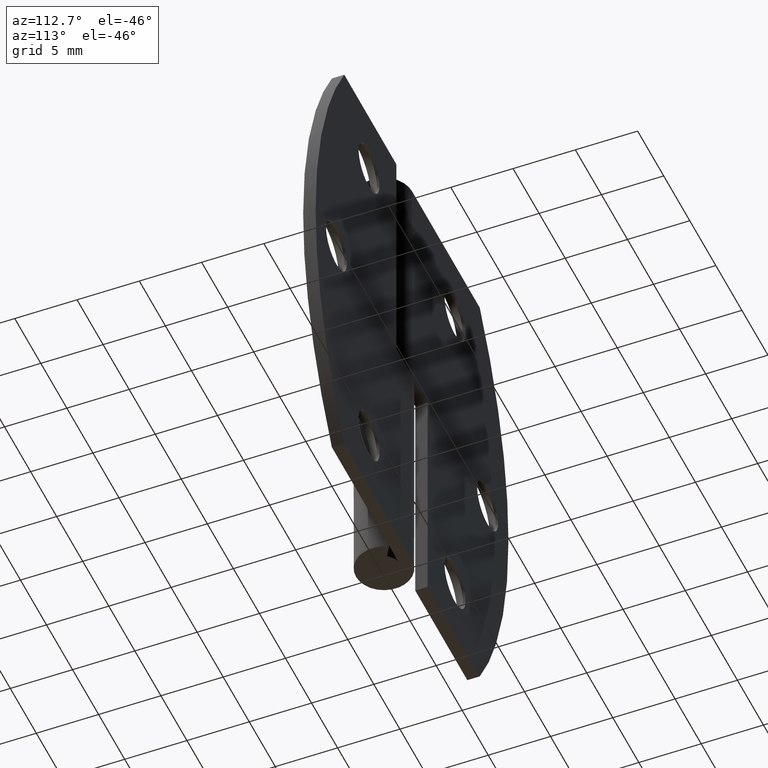
[diagram: clean part render]
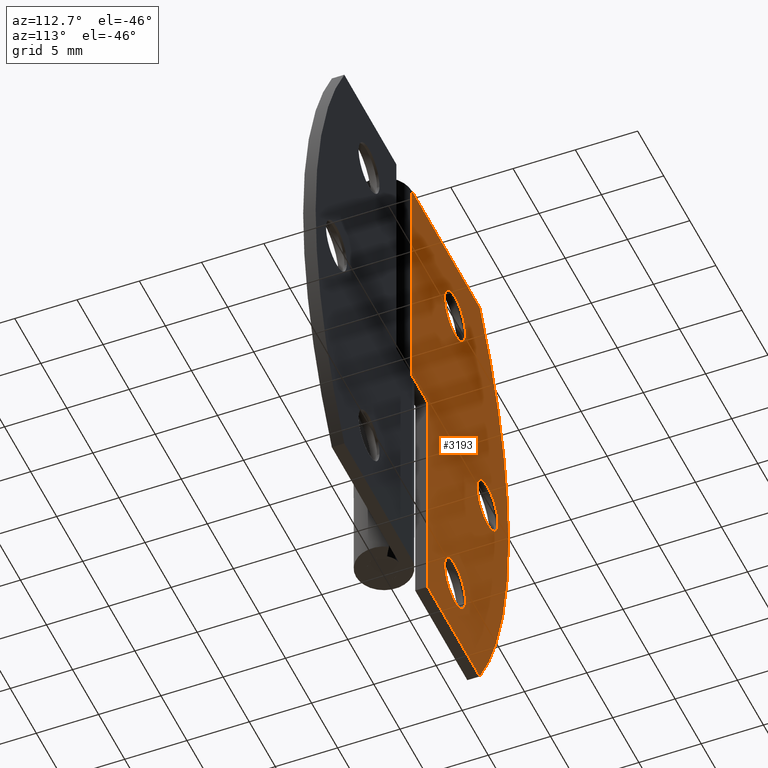
[diagram: same view with one face highlighted and labeled with its STEP entity id]
A machine part, auxiliary view. The second image highlights one B-rep face of the part: STEP entity #3193.
In plain terms, the highlighted face is a freeform B-spline surface patch.
Its self-contained STEP definition (entity closure, byte-faithful):
#2108=CARTESIAN_POINT('',(-6.263980947286562,2.250000000000000,5.636070469430411));
#2109=VERTEX_POINT('',#2108);
#2115=CARTESIAN_POINT('',(-8.250000000000000,2.250000000000000,3.400002000000000));
#2116=VERTEX_POINT('',#2115);
#2117=CARTESIAN_POINT('',(-6.263980947286562,2.250000000000000,5.636070469430411));
#2118=CARTESIAN_POINT('',(-6.250000000000000,2.250000000000000,5.518450239421951));
#2119=CARTESIAN_POINT('',(-6.250000000000000,2.250000000000000,5.400002000000000));
#2120=CARTESIAN_POINT('',(-6.250000000000000,2.250000000000000,3.400002000000000));
#2121=CARTESIAN_POINT('',(-8.250000000000000,2.250000000000000,3.400002000000000));
#2129=(BOUNDED_CURVE()B_SPLINE_CURVE(2,(#2117,#2118,#2119,#2120,#2121),.UNSPECIFIED.,.F.,.U.)B_SPLINE_CURVE_WITH_KNOTS((3,2,3),(0.229562473495749,0.250000000000000,0.500000000000000),.UNSPECIFIED.)CURVE()GEOMETRIC_REPRESENTATION_ITEM()RATIONAL_B_SPLINE_CURVE((0.956026754148891,0.976055948310339,1.0,0.707106781186548,1.0))REPRESENTATION_ITEM(''));
#2130=EDGE_CURVE('',#2109,#2116,#2129,.T.);
#2132=CARTESIAN_POINT('',(-10.246269596835971,2.250000000000000,5.277904920803391));
#2133=VERTEX_POINT('',#2132);
#2134=CARTESIAN_POINT('',(-8.250000000000000,2.250000000000000,3.400002000000000));
#2135=CARTESIAN_POINT('',(-10.131412133571747,2.250000000000000,3.400002000000000));
#2136=CARTESIAN_POINT('',(-10.246269596835972,2.250000000000000,5.277904920803391));
#2144=(BOUNDED_CURVE()B_SPLINE_CURVE(2,(#2134,#2135,#2136),.UNSPECIFIED.,.F.,.U.)B_SPLINE_CURVE_WITH_KNOTS((3,3),(0.500000000000000,0.739332962220031),.UNSPECIFIED.)CURVE()GEOMETRIC_REPRESENTATION_ITEM()RATIONAL_B_SPLINE_CURVE((1.0,0.719603993308866,0.976072041626187))REPRESENTATION_ITEM(''));
#2145=EDGE_CURVE('',#2116,#2133,#2144,.T.);
#2179=CARTESIAN_POINT('',(-8.250000000000000,2.250000000000000,7.400002000000000));
#2180=VERTEX_POINT('',#2179);
#2181=CARTESIAN_POINT('',(-10.246269596835972,2.250000000000000,5.277904920803391));
#2182=CARTESIAN_POINT('',(-10.250000000000000,2.250000000000001,5.338896473275572));
#2183=CARTESIAN_POINT('',(-10.250000000000000,2.250000000000000,5.400002000000000));
#2184=CARTESIAN_POINT('',(-10.250000000000000,2.250000000000000,7.400001999999999));
#2185=CARTESIAN_POINT('',(-8.250000000000000,2.250000000000000,7.400002000000000));
#2193=(BOUNDED_CURVE()B_SPLINE_CURVE(2,(#2181,#2182,#2183,#2184,#2185),.UNSPECIFIED.,.F.,.U.)B_SPLINE_CURVE_WITH_KNOTS((3,2,3),(0.739332962220032,0.750000000000000,1.0),.UNSPECIFIED.)CURVE()GEOMETRIC_REPRESENTATION_ITEM()RATIONAL_B_SPLINE_CURVE((0.976072041626188,0.987502787877682,1.0,0.707106781186548,1.0))REPRESENTATION_ITEM(''));
#2194=EDGE_CURVE('',#2133,#2180,#2193,.T.);
#2196=CARTESIAN_POINT('',(-8.250000000000000,2.250000000000000,7.400002000000000));
#2197=CARTESIAN_POINT('',(-6.473650948307843,2.250000000000001,7.400001999999998));
#2198=CARTESIAN_POINT('',(-6.263980947286562,2.249999999999999,5.636070469430412));
#2206=(BOUNDED_CURVE()B_SPLINE_CURVE(2,(#2196,#2197,#2198),.UNSPECIFIED.,.F.,.U.)B_SPLINE_CURVE_WITH_KNOTS((3,3),(0.0,0.229562473495750),.UNSPECIFIED.)CURVE()GEOMETRIC_REPRESENTATION_ITEM()RATIONAL_B_SPLINE_CURVE((1.0,0.731050832876208,0.956026754148891))REPRESENTATION_ITEM(''));
#2207=EDGE_CURVE('',#2180,#2109,#2206,.T.);
#2452=CARTESIAN_POINT('',(-12.513980947286560,2.250000000000000,19.886070469430418));
#2453=VERTEX_POINT('',#2452);
#2459=CARTESIAN_POINT('',(-14.500000000000000,2.250000000000000,17.650002000000001));
#2460=VERTEX_POINT('',#2459);
#2461=CARTESIAN_POINT('',(-12.513980947286560,2.249999999999999,19.886070469430415));
#2462=CARTESIAN_POINT('',(-12.499999999999998,2.250000000000000,19.768450239421952));
#2463=CARTESIAN_POINT('',(-12.500000000000000,2.250000000000000,19.650002000000001));
#2464=CARTESIAN_POINT('',(-12.500000000000000,2.250000000000000,17.650002000000004));
#2465=CARTESIAN_POINT('',(-14.500000000000000,2.250000000000000,17.650002000000001));
#2473=(BOUNDED_CURVE()B_SPLINE_CURVE(2,(#2461,#2462,#2463,#2464,#2465),.UNSPECIFIED.,.F.,.U.)B_SPLINE_CURVE_WITH_KNOTS((3,2,3),(0.229562473495749,0.250000000000000,0.500000000000000),.UNSPECIFIED.)CURVE()GEOMETRIC_REPRESENTATION_ITEM()RATIONAL_B_SPLINE_CURVE((0.956026754148891,0.976055948310339,1.0,0.707106781186548,1.0))REPRESENTATION_ITEM(''));
#2474=EDGE_CURVE('',#2453,#2460,#2473,.T.);
#2476=CARTESIAN_POINT('',(-16.496269596835969,2.250000000000000,19.527904920803390));
#2477=VERTEX_POINT('',#2476);
#2478=CARTESIAN_POINT('',(-14.500000000000000,2.250000000000000,17.650002000000001));
#2479=CARTESIAN_POINT('',(-16.381412133571750,2.250000000000000,17.650002000000001));
#2480=CARTESIAN_POINT('',(-16.496269596835976,2.250000000000000,19.527904920803390));
#2488=(BOUNDED_CURVE()B_SPLINE_CURVE(2,(#2478,#2479,#2480),.UNSPECIFIED.,.F.,.U.)B_SPLINE_CURVE_WITH_KNOTS((3,3),(0.500000000000000,0.739332962220031),.UNSPECIFIED.)CURVE()GEOMETRIC_REPRESENTATION_ITEM()RATIONAL_B_SPLINE_CURVE((1.0,0.719603993308866,0.976072041626187))REPRESENTATION_ITEM(''));
#2489=EDGE_CURVE('',#2460,#2477,#2488,.T.);
#2523=CARTESIAN_POINT('',(-14.500000000000000,2.250000000000000,21.650002000000001));
#2524=VERTEX_POINT('',#2523);
#2525=CARTESIAN_POINT('',(-16.496269596835976,2.250000000000000,19.527904920803397));
#2526=CARTESIAN_POINT('',(-16.499999999999996,2.250000000000001,19.588896473275572));
#2527=CARTESIAN_POINT('',(-16.500000000000000,2.250000000000000,19.650002000000001));
#2528=CARTESIAN_POINT('',(-16.499999999999993,2.250000000000000,21.650002000000004));
#2529=CARTESIAN_POINT('',(-14.500000000000000,2.250000000000000,21.650002000000001));
#2537=(BOUNDED_CURVE()B_SPLINE_CURVE(2,(#2525,#2526,#2527,#2528,#2529),.UNSPECIFIED.,.F.,.U.)B_SPLINE_CURVE_WITH_KNOTS((3,2,3),(0.739332962220032,0.750000000000000,1.0),.UNSPECIFIED.)CURVE()GEOMETRIC_REPRESENTATION_ITEM()RATIONAL_B_SPLINE_CURVE((0.976072041626188,0.987502787877682,1.0,0.707106781186548,1.0))REPRESENTATION_ITEM(''));
#2538=EDGE_CURVE('',#2477,#2524,#2537,.T.);
#2540=CARTESIAN_POINT('',(-14.500000000000000,2.250000000000000,21.650002000000001));
#2541=CARTESIAN_POINT('',(-12.723650948307846,2.250000000000000,21.650002000000001));
#2542=CARTESIAN_POINT('',(-12.513980947286559,2.250000000000000,19.886070469430411));
#2550=(BOUNDED_CURVE()B_SPLINE_CURVE(2,(#2540,#2541,#2542),.UNSPECIFIED.,.F.,.U.)B_SPLINE_CURVE_WITH_KNOTS((3,3),(0.0,0.229562473495750),.UNSPECIFIED.)CURVE()GEOMETRIC_REPRESENTATION_ITEM()RATIONAL_B_SPLINE_CURVE((1.0,0.731050832876208,0.956026754148892))REPRESENTATION_ITEM(''));
#2551=EDGE_CURVE('',#2524,#2453,#2550,.T.);
#2796=CARTESIAN_POINT('',(-6.263980947286561,2.250000000000000,34.136077469430496));
#2797=VERTEX_POINT('',#2796);
#2803=CARTESIAN_POINT('',(-8.250000000000000,2.250000000000000,31.900009000000100));
#2804=VERTEX_POINT('',#2803);
#2805=CARTESIAN_POINT('',(-6.263980947286561,2.250000000000000,34.136077469430496));
#2806=CARTESIAN_POINT('',(-6.250000000000001,2.250000000000000,34.018457239422048));
#2807=CARTESIAN_POINT('',(-6.250000000000000,2.250000000000000,33.900009000000097));
#2808=CARTESIAN_POINT('',(-6.250000000000000,2.250000000000000,31.900009000000100));
#2809=CARTESIAN_POINT('',(-8.250000000000000,2.250000000000000,31.900009000000100));
#2817=(BOUNDED_CURVE()B_SPLINE_CURVE(2,(#2805,#2806,#2807,#2808,#2809),.UNSPECIFIED.,.F.,.U.)B_SPLINE_CURVE_WITH_KNOTS((3,2,3),(0.229562473495750,0.250000000000000,0.500000000000000),.UNSPECIFIED.)CURVE()GEOMETRIC_REPRESENTATION_ITEM()RATIONAL_B_SPLINE_CURVE((0.956026754148893,0.976055948310340,1.0,0.707106781186548,1.0))REPRESENTATION_ITEM(''));
#2818=EDGE_CURVE('',#2797,#2804,#2817,.T.);
#2820=CARTESIAN_POINT('',(-10.246269596835971,2.250000000000000,33.777911920803490));
#2821=VERTEX_POINT('',#2820);
#2822=CARTESIAN_POINT('',(-8.250000000000000,2.250000000000000,31.900009000000100));
#2823=CARTESIAN_POINT('',(-10.131412133571747,2.250000000000000,31.900009000000097));
#2824=CARTESIAN_POINT('',(-10.246269596835972,2.250000000000000,33.777911920803490));
#2832=(BOUNDED_CURVE()B_SPLINE_CURVE(2,(#2822,#2823,#2824),.UNSPECIFIED.,.F.,.U.)B_SPLINE_CURVE_WITH_KNOTS((3,3),(0.500000000000000,0.739332962220031),.UNSPECIFIED.)CURVE()GEOMETRIC_REPRESENTATION_ITEM()RATIONAL_B_SPLINE_CURVE((1.0,0.719603993308866,0.976072041626187))REPRESENTATION_ITEM(''));
#2833=EDGE_CURVE('',#2804,#2821,#2832,.T.);
#2867=CARTESIAN_POINT('',(-8.250000000000000,2.250000000000000,35.900009000000097));
#2868=VERTEX_POINT('',#2867);
#2869=CARTESIAN_POINT('',(-10.246269596835972,2.250000000000000,33.777911920803497));
#2870=CARTESIAN_POINT('',(-10.250000000000000,2.250000000000001,33.838903473275671));
#2871=CARTESIAN_POINT('',(-10.250000000000000,2.250000000000000,33.900009000000097));
#2872=CARTESIAN_POINT('',(-10.250000000000000,2.250000000000000,35.900009000000104));
#2873=CARTESIAN_POINT('',(-8.250000000000000,2.250000000000000,35.900009000000097));
#2881=(BOUNDED_CURVE()B_SPLINE_CURVE(2,(#2869,#2870,#2871,#2872,#2873),.UNSPECIFIED.,.F.,.U.)B_SPLINE_CURVE_WITH_KNOTS((3,2,3),(0.739332962220032,0.750000000000000,1.0),.UNSPECIFIED.)CURVE()GEOMETRIC_REPRESENTATION_ITEM()RATIONAL_B_SPLINE_CURVE((0.976072041626188,0.987502787877682,1.0,0.707106781186548,1.0))REPRESENTATION_ITEM(''));
#2882=EDGE_CURVE('',#2821,#2868,#2881,.T.);
#2884=CARTESIAN_POINT('',(-8.250000000000000,2.250000000000000,35.900009000000097));
#2885=CARTESIAN_POINT('',(-6.473650948307835,2.249999999999999,35.900009000000111));
#2886=CARTESIAN_POINT('',(-6.263980947286561,2.250000000000000,34.136077469430511));
#2894=(BOUNDED_CURVE()B_SPLINE_CURVE(2,(#2884,#2885,#2886),.UNSPECIFIED.,.F.,.U.)B_SPLINE_CURVE_WITH_KNOTS((3,3),(0.0,0.229562473495750),.UNSPECIFIED.)CURVE()GEOMETRIC_REPRESENTATION_ITEM()RATIONAL_B_SPLINE_CURVE((1.0,0.731050832876207,0.956026754148893))REPRESENTATION_ITEM(''));
#2895=EDGE_CURVE('',#2868,#2797,#2894,.T.);
#2915=CARTESIAN_POINT('',(-3.0,2.249999999999975,0.0));
#2916=VERTEX_POINT('',#2915);
#2922=CARTESIAN_POINT('',(-3.0,2.249999999999975,19.650002000000001));
#2923=VERTEX_POINT('',#2922);
#2924=CARTESIAN_POINT('',(-3.0,2.249999999999975,19.650002000000001));
#2925=CARTESIAN_POINT('',(-3.0,2.249999999999975,0.0));
#2926=QUASI_UNIFORM_CURVE('',1,(#2924,#2925),.UNSPECIFIED.,.F.,.U.);
#2927=EDGE_CURVE('',#2923,#2916,#2926,.T.);
#2950=CARTESIAN_POINT('',(0.0,2.249999999999975,19.650002000000001));
#2951=VERTEX_POINT('',#2950);
#2952=CARTESIAN_POINT('',(0.0,2.249999999999975,19.650002000000001));
#2953=CARTESIAN_POINT('',(-3.0,2.249999999999975,19.650002000000001));
#2954=QUASI_UNIFORM_CURVE('',1,(#2952,#2953),.UNSPECIFIED.,.F.,.U.);
#2955=EDGE_CURVE('',#2951,#2923,#2954,.T.);
#3021=CARTESIAN_POINT('',(-12.999995655354020,2.249999999999975,39.300003000000103));
#3022=VERTEX_POINT('',#3021);
#3023=CARTESIAN_POINT('',(-12.999995047973600,2.249999999999975,0.0));
#3024=VERTEX_POINT('',#3023);
#3025=CARTESIAN_POINT('',(-12.999995655354031,2.249999999999975,39.300003000000103));
#3026=CARTESIAN_POINT('',(-24.935022729928775,2.249999999999974,19.650001315544539));
#3027=CARTESIAN_POINT('',(-12.999995047973609,2.249999999999975,-3.469447E-015));
#3035=(BOUNDED_CURVE()B_SPLINE_CURVE(2,(#3025,#3026,#3027),.UNSPECIFIED.,.F.,.U.)CURVE()GEOMETRIC_REPRESENTATION_ITEM()QUASI_UNIFORM_CURVE()RATIONAL_B_SPLINE_CURVE((1.0,0.854697405180328,1.0))REPRESENTATION_ITEM(''));
#3036=EDGE_CURVE('',#3022,#3024,#3035,.T.);
#3073=CARTESIAN_POINT('',(1.377682E-016,2.250000000000000,39.300003000000153));
#3074=VERTEX_POINT('',#3073);
#3075=CARTESIAN_POINT('',(1.377682E-016,2.250000000000000,39.300003000000153));
#3076=CARTESIAN_POINT('',(-12.999995655354020,2.249999999999975,39.300003000000103));
#3077=QUASI_UNIFORM_CURVE('',1,(#3075,#3076),.UNSPECIFIED.,.F.,.U.);
#3078=EDGE_CURVE('',#3074,#3022,#3077,.T.);
#3143=CARTESIAN_POINT('',(-3.0,2.249999999999975,0.0));
#3144=CARTESIAN_POINT('',(-12.999995047973600,2.249999999999975,0.0));
#3145=QUASI_UNIFORM_CURVE('',1,(#3143,#3144),.UNSPECIFIED.,.F.,.U.);
#3146=EDGE_CURVE('',#2916,#3024,#3145,.T.);
#3158=CARTESIAN_POINT('',(-19.424070938008128,2.250000000000000,41.263038073679127));
#3159=CARTESIAN_POINT('',(-19.424070938008128,2.250000000000000,-1.963036127787198));
#3160=CARTESIAN_POINT('',(0.924075268813850,2.250000000000000,41.263038073679127));
#3161=CARTESIAN_POINT('',(0.924075268813850,2.250000000000000,-1.963036127787198));
#3162=B_SPLINE_SURFACE_WITH_KNOTS('',1,1,((#3158,#3160),(#3159,#3161)),.UNSPECIFIED.,.F.,.F.,.U.,(2,2),(2,2),(0.0,43.226074201466332),(0.0,20.348146206821980),.UNSPECIFIED.);
#3163=ORIENTED_EDGE('',*,*,#2955,.T.);
#3164=ORIENTED_EDGE('',*,*,#2927,.T.);
#3165=ORIENTED_EDGE('',*,*,#3146,.T.);
#3166=ORIENTED_EDGE('',*,*,#3036,.F.);
#3167=ORIENTED_EDGE('',*,*,#3078,.F.);
#3168=CARTESIAN_POINT('',(1.377682E-016,2.250000000000000,39.300003000000153));
#3169=CARTESIAN_POINT('',(0.0,2.249999999999975,19.650002000000001));
#3170=QUASI_UNIFORM_CURVE('',1,(#3168,#3169),.UNSPECIFIED.,.F.,.U.);
#3171=EDGE_CURVE('',#3074,#2951,#3170,.T.);
#3172=ORIENTED_EDGE('',*,*,#3171,.T.);
#3173=EDGE_LOOP('',(#3163,#3164,#3165,#3166,#3167,#3172));
#3174=FACE_OUTER_BOUND('',#3173,.T.);
#3175=ORIENTED_EDGE('',*,*,#2833,.F.);
#3176=ORIENTED_EDGE('',*,*,#2818,.F.);
#3177=ORIENTED_EDGE('',*,*,#2895,.F.);
#3178=ORIENTED_EDGE('',*,*,#2882,.F.);
#3179=EDGE_LOOP('',(#3175,#3176,#3177,#3178));
#3180=FACE_BOUND('',#3179,.T.);
#3181=ORIENTED_EDGE('',*,*,#2489,.F.);
#3182=ORIENTED_EDGE('',*,*,#2474,.F.);
#3183=ORIENTED_EDGE('',*,*,#2551,.F.);
#3184=ORIENTED_EDGE('',*,*,#2538,.F.);
#3185=EDGE_LOOP('',(#3181,#3182,#3183,#3184));
#3186=FACE_BOUND('',#3185,.T.);
#3187=ORIENTED_EDGE('',*,*,#2145,.F.);
#3188=ORIENTED_EDGE('',*,*,#2130,.F.);
#3189=ORIENTED_EDGE('',*,*,#2207,.F.);
#3190=ORIENTED_EDGE('',*,*,#2194,.F.);
#3191=EDGE_LOOP('',(#3187,#3188,#3189,#3190));
#3192=FACE_BOUND('',#3191,.T.);
#3193=ADVANCED_FACE('',(#3174,#3180,#3186,#3192),#3162,.F.);